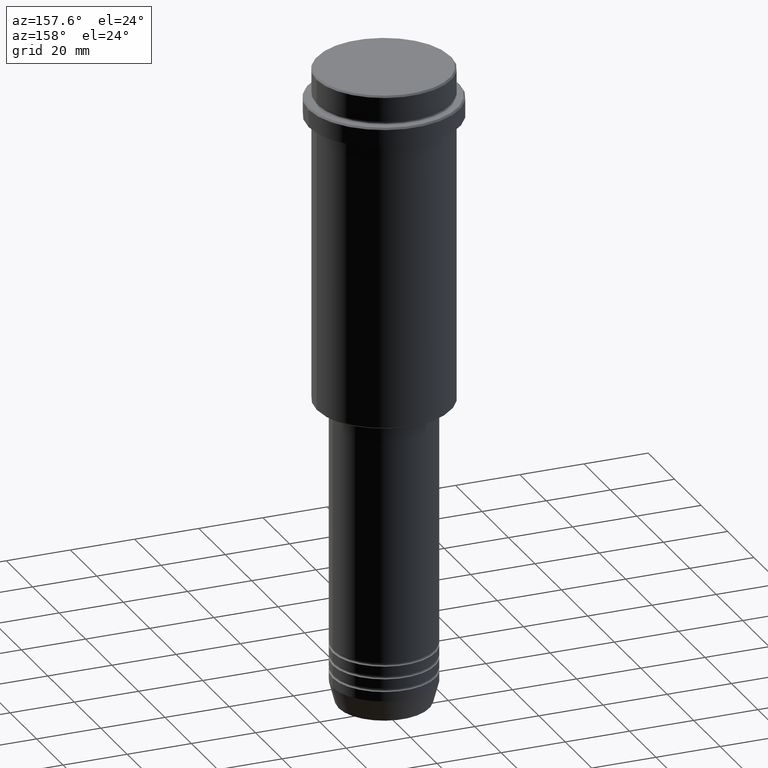
[diagram: clean part render]
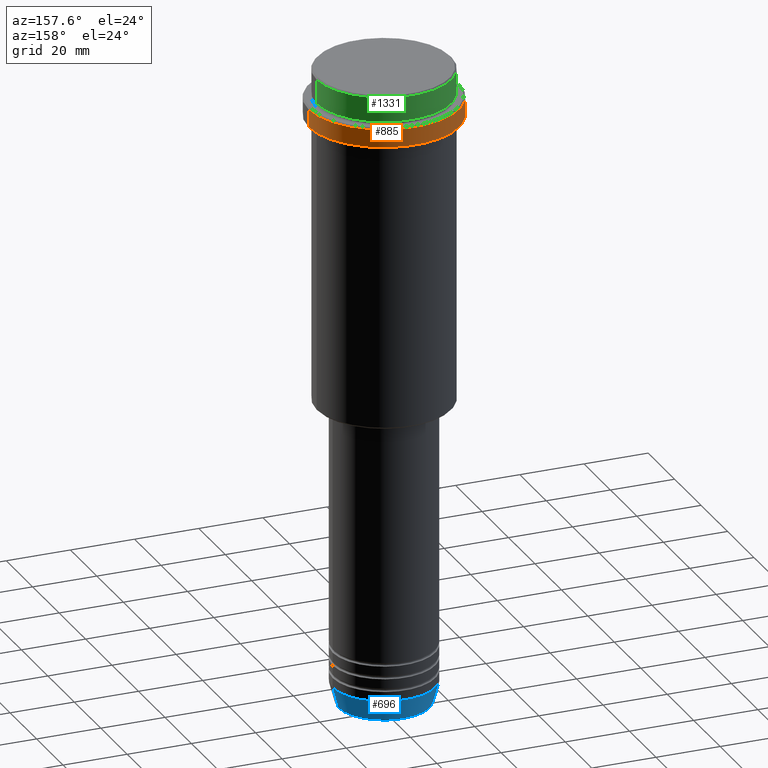
[diagram: same view with three faces highlighted in distinct colors, each labeled with its STEP entity id]
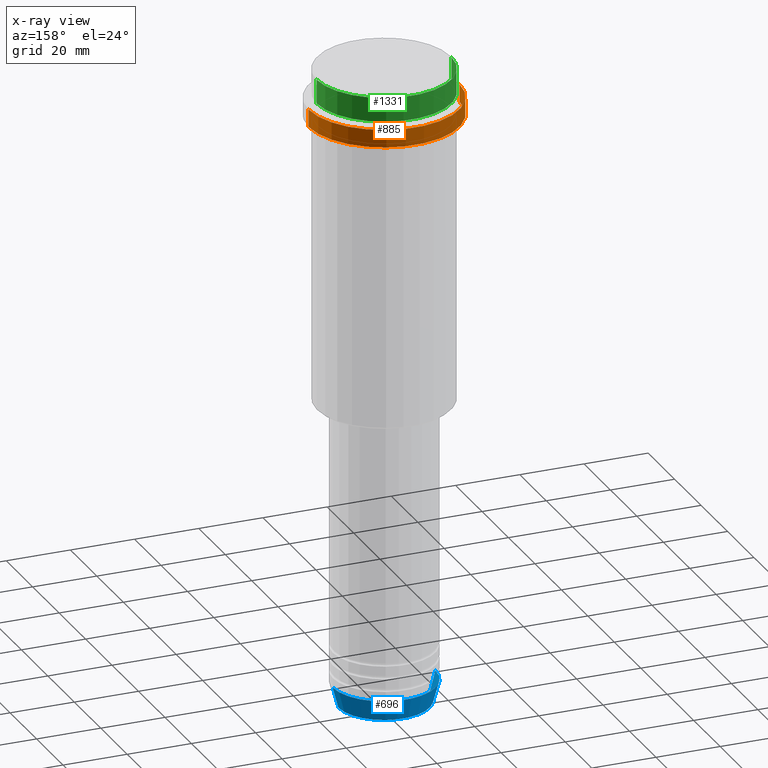
[diagram: x-ray of the same camera — body ghosted, the three highlighted faces saturated]
A machine part, auxiliary view with three faces highlighted in distinct colors.
The next image is the same camera in x-ray (body ghosted, the three faces saturated) — at least one of them is partly hidden behind the body in this view.
Their STEP definitions:

[orange] entity #885 — the highlighted cylindrical surface (partial cylindrical patch) has radius 23.5 mm, axis along (-0, -0, 1).
#34 = VERTEX_POINT ( 'NONE', #38 ) ;
#38 = CARTESIAN_POINT ( 'NONE',  ( -23.50000000000000000, 2.877919977996280320E-15, -9.500000000000000000 ) ) ;
#88 = AXIS2_PLACEMENT_3D ( 'NONE', #1214, #238, #898 ) ;
#126 = CARTESIAN_POINT ( 'NONE',  ( -23.50000000000000000, 2.877919977996280320E-15, 0.000000000000000000 ) ) ;
#146 = FACE_OUTER_BOUND ( 'NONE', #179, .T. ) ;
#152 = VECTOR ( 'NONE', #683, 1000.000000000000000 ) ;
#170 = ORIENTED_EDGE ( 'NONE', *, *, #722, .T. ) ;
#179 = EDGE_LOOP ( 'NONE', ( #443, #170, #812, #209 ) ) ;
#209 = ORIENTED_EDGE ( 'NONE', *, *, #232, .F. ) ;
#232 = EDGE_CURVE ( 'NONE', #942, #672, #1198, .T. ) ;
#238 = DIRECTION ( 'NONE',  ( 0.000000000000000000, 0.000000000000000000, -1.000000000000000000 ) ) ;
#282 = VERTEX_POINT ( 'NONE', #893 ) ;
#404 = AXIS2_PLACEMENT_3D ( 'NONE', #726, #1044, #715 ) ;
#443 = ORIENTED_EDGE ( 'NONE', *, *, #1361, .T. ) ;
#499 = DIRECTION ( 'NONE',  ( -0.000000000000000000, -0.000000000000000000, 1.000000000000000000 ) ) ;
#534 = DIRECTION ( 'NONE',  ( -0.000000000000000000, -0.000000000000000000, 1.000000000000000000 ) ) ;
#565 = LINE ( 'NONE', #126, #152 ) ;
#611 = CYLINDRICAL_SURFACE ( 'NONE', #404, 23.50000000000000000 ) ;
#667 = VECTOR ( 'NONE', #534, 1000.000000000000000 ) ;
#672 = VERTEX_POINT ( 'NONE', #1190 ) ;
#679 = CARTESIAN_POINT ( 'NONE',  ( 23.50000000000000000, 0.000000000000000000, 0.000000000000000000 ) ) ;
#683 = DIRECTION ( 'NONE',  ( -0.000000000000000000, -0.000000000000000000, 1.000000000000000000 ) ) ;
#702 = CARTESIAN_POINT ( 'NONE',  ( 0.000000000000000000, 0.000000000000000000, -15.00000000000000000 ) ) ;
#715 = DIRECTION ( 'NONE',  ( 1.000000000000000000, 0.000000000000000000, 0.000000000000000000 ) ) ;
#722 = EDGE_CURVE ( 'NONE', #282, #34, #565, .T. ) ;
#726 = CARTESIAN_POINT ( 'NONE',  ( 0.000000000000000000, 0.000000000000000000, 0.000000000000000000 ) ) ;
#733 = AXIS2_PLACEMENT_3D ( 'NONE', #702, #499, #1126 ) ;
#812 = ORIENTED_EDGE ( 'NONE', *, *, #835, .T. ) ;
#835 = EDGE_CURVE ( 'NONE', #34, #672, #1154, .T. ) ;
#885 = ADVANCED_FACE ( 'NONE', ( #146 ), #611, .T. ) ;
#893 = CARTESIAN_POINT ( 'NONE',  ( -23.50000000000000711, 2.877919977996281109E-15, -15.00000000000000000 ) ) ;
#898 = DIRECTION ( 'NONE',  ( 1.000000000000000000, 0.000000000000000000, 0.000000000000000000 ) ) ;
#916 = CARTESIAN_POINT ( 'NONE',  ( 23.50000000000000355, 0.000000000000000000, -15.00000000000000000 ) ) ;
#942 = VERTEX_POINT ( 'NONE', #916 ) ;
#1044 = DIRECTION ( 'NONE',  ( -0.000000000000000000, -0.000000000000000000, 1.000000000000000000 ) ) ;
#1126 = DIRECTION ( 'NONE',  ( 1.000000000000000000, 0.000000000000000000, 0.000000000000000000 ) ) ;
#1154 = CIRCLE ( 'NONE', #88, 23.50000000000000000 ) ;
#1179 = CIRCLE ( 'NONE', #733, 23.50000000000000355 ) ;
#1190 = CARTESIAN_POINT ( 'NONE',  ( 23.50000000000000000, 0.000000000000000000, -9.500000000000000000 ) ) ;
#1198 = LINE ( 'NONE', #679, #667 ) ;
#1214 = CARTESIAN_POINT ( 'NONE',  ( 0.000000000000000000, 0.000000000000000000, -9.500000000000000000 ) ) ;
#1361 = EDGE_CURVE ( 'NONE', #942, #282, #1179, .T. ) ;

[blue] entity #696 — the highlighted conical surface has half-angle 15 deg.
#13 = EDGE_CURVE ( 'NONE', #259, #480, #213, .T. ) ;
#53 = CARTESIAN_POINT ( 'NONE',  ( 0.000000000000000000, 0.000000000000000000, -199.6294095225512706 ) ) ;
#85 = DIRECTION ( 'NONE',  ( 1.000000000000000000, 0.000000000000000000, 0.000000000000000000 ) ) ;
#91 = VERTEX_POINT ( 'NONE', #176 ) ;
#129 = AXIS2_PLACEMENT_3D ( 'NONE', #1174, #186, #1077 ) ;
#176 = CARTESIAN_POINT ( 'NONE',  ( 16.00000000000000000, 0.000000000000000000, -193.0000000000000000 ) ) ;
#186 = DIRECTION ( 'NONE',  ( -0.000000000000000000, -0.000000000000000000, 1.000000000000000000 ) ) ;
#197 = VECTOR ( 'NONE', #1122, 1000.000000000000000 ) ;
#213 = CIRCLE ( 'NONE', #1380, 14.22365507213718239 ) ;
#259 = VERTEX_POINT ( 'NONE', #335 ) ;
#307 = CARTESIAN_POINT ( 'NONE',  ( 0.000000000000000000, 0.000000000000000000, -193.0000000000000000 ) ) ;
#335 = CARTESIAN_POINT ( 'NONE',  ( 14.22365507213718239, 0.000000000000000000, -199.6294095225512706 ) ) ;
#371 = DIRECTION ( 'NONE',  ( 1.000000000000000000, 0.000000000000000000, 0.000000000000000000 ) ) ;
#381 = LINE ( 'NONE', #1244, #197 ) ;
#474 = CARTESIAN_POINT ( 'NONE',  ( -16.00000000000000000, 1.959434878635765131E-15, -193.0000000000000000 ) ) ;
#480 = VERTEX_POINT ( 'NONE', #1332 ) ;
#501 = VERTEX_POINT ( 'NONE', #474 ) ;
#515 = DIRECTION ( 'NONE',  ( -0.000000000000000000, -0.000000000000000000, 1.000000000000000000 ) ) ;
#521 = CIRCLE ( 'NONE', #545, 16.00000000000000000 ) ;
#545 = AXIS2_PLACEMENT_3D ( 'NONE', #307, #515, #85 ) ;
#572 = EDGE_CURVE ( 'NONE', #91, #501, #521, .T. ) ;
#575 = ORIENTED_EDGE ( 'NONE', *, *, #863, .T. ) ;
#637 = LINE ( 'NONE', #1157, #1017 ) ;
#659 = ORIENTED_EDGE ( 'NONE', *, *, #572, .F. ) ;
#695 = DIRECTION ( 'NONE',  ( -0.000000000000000000, -0.000000000000000000, 1.000000000000000000 ) ) ;
#696 = ADVANCED_FACE ( 'NONE', ( #1168 ), #746, .T. ) ;
#746 = CONICAL_SURFACE ( 'NONE', #129, 16.00000000000000000, 0.2617993877991500740 ) ;
#859 = EDGE_LOOP ( 'NONE', ( #1285, #575, #659, #1201 ) ) ;
#863 = EDGE_CURVE ( 'NONE', #480, #501, #381, .T. ) ;
#1017 = VECTOR ( 'NONE', #1284, 1000.000000000000000 ) ;
#1077 = DIRECTION ( 'NONE',  ( 1.000000000000000000, 0.000000000000000000, 0.000000000000000000 ) ) ;
#1122 = DIRECTION ( 'NONE',  ( -0.2588190451025213501, 3.169619151431772337E-17, 0.9659258262890680902 ) ) ;
#1157 = CARTESIAN_POINT ( 'NONE',  ( 16.00000000000000000, 0.000000000000000000, -193.0000000000000000 ) ) ;
#1168 = FACE_OUTER_BOUND ( 'NONE', #859, .T. ) ;
#1174 = CARTESIAN_POINT ( 'NONE',  ( 0.000000000000000000, 0.000000000000000000, -193.0000000000000000 ) ) ;
#1201 = ORIENTED_EDGE ( 'NONE', *, *, #1403, .F. ) ;
#1244 = CARTESIAN_POINT ( 'NONE',  ( -16.00000000000000000, 1.959434878635765131E-15, -193.0000000000000000 ) ) ;
#1284 = DIRECTION ( 'NONE',  ( 0.2588190451025213501, 0.000000000000000000, 0.9659258262890680902 ) ) ;
#1285 = ORIENTED_EDGE ( 'NONE', *, *, #13, .T. ) ;
#1332 = CARTESIAN_POINT ( 'NONE',  ( -14.22365507213718239, 1.850665122131322942E-15, -199.6294095225512706 ) ) ;
#1380 = AXIS2_PLACEMENT_3D ( 'NONE', #53, #695, #371 ) ;
#1403 = EDGE_CURVE ( 'NONE', #259, #91, #637, .T. ) ;

[green] entity #1331 — the highlighted cylindrical surface (partial cylindrical patch) has radius 21 mm, axis along (-0, -0, 1).
#162 = EDGE_CURVE ( 'NONE', #508, #284, #505, .T. ) ;
#164 = DIRECTION ( 'NONE',  ( 0.000000000000000000, 0.000000000000000000, -1.000000000000000000 ) ) ;
#199 = CIRCLE ( 'NONE', #1155, 21.00000000000000000 ) ;
#217 = ORIENTED_EDGE ( 'NONE', *, *, #162, .T. ) ;
#235 = CARTESIAN_POINT ( 'NONE',  ( 21.00000000000000000, 0.000000000000000000, -0.5000000000000108802 ) ) ;
#266 = DIRECTION ( 'NONE',  ( -0.000000000000000000, -0.000000000000000000, 1.000000000000000000 ) ) ;
#272 = CARTESIAN_POINT ( 'NONE',  ( 0.000000000000000000, 0.000000000000000000, -0.5000000000000108802 ) ) ;
#284 = VERTEX_POINT ( 'NONE', #1209 ) ;
#319 = DIRECTION ( 'NONE',  ( -0.000000000000000000, -0.000000000000000000, 1.000000000000000000 ) ) ;
#328 = DIRECTION ( 'NONE',  ( -0.000000000000000000, -0.000000000000000000, 1.000000000000000000 ) ) ;
#416 = EDGE_LOOP ( 'NONE', ( #1180, #217, #1223, #432 ) ) ;
#425 = LINE ( 'NONE', #1397, #890 ) ;
#432 = ORIENTED_EDGE ( 'NONE', *, *, #658, .F. ) ;
#454 = VECTOR ( 'NONE', #628, 1000.000000000000000 ) ;
#487 = CARTESIAN_POINT ( 'NONE',  ( 21.00000000000000000, 0.000000000000000000, -7.999999999999998224 ) ) ;
#503 = AXIS2_PLACEMENT_3D ( 'NONE', #907, #266, #1340 ) ;
#505 = LINE ( 'NONE', #1058, #454 ) ;
#508 = VERTEX_POINT ( 'NONE', #1002 ) ;
#578 = EDGE_CURVE ( 'NONE', #980, #508, #707, .T. ) ;
#628 = DIRECTION ( 'NONE',  ( -0.000000000000000000, -0.000000000000000000, 1.000000000000000000 ) ) ;
#658 = EDGE_CURVE ( 'NONE', #980, #1189, #425, .T. ) ;
#707 = CIRCLE ( 'NONE', #1153, 21.00000000000000000 ) ;
#757 = CARTESIAN_POINT ( 'NONE',  ( 0.000000000000000000, 0.000000000000000000, -7.999999999999998224 ) ) ;
#805 = FACE_OUTER_BOUND ( 'NONE', #416, .T. ) ;
#831 = DIRECTION ( 'NONE',  ( 1.000000000000000000, 0.000000000000000000, 0.000000000000000000 ) ) ;
#890 = VECTOR ( 'NONE', #319, 1000.000000000000000 ) ;
#907 = CARTESIAN_POINT ( 'NONE',  ( 0.000000000000000000, 0.000000000000000000, 0.000000000000000000 ) ) ;
#962 = DIRECTION ( 'NONE',  ( 1.000000000000000000, 0.000000000000000000, 0.000000000000000000 ) ) ;
#980 = VERTEX_POINT ( 'NONE', #487 ) ;
#1002 = CARTESIAN_POINT ( 'NONE',  ( -21.00000000000000000, 2.571758278209441661E-15, -7.999999999999998224 ) ) ;
#1034 = CYLINDRICAL_SURFACE ( 'NONE', #503, 21.00000000000000000 ) ;
#1058 = CARTESIAN_POINT ( 'NONE',  ( -21.00000000000000000, 2.571758278209441661E-15, 0.000000000000000000 ) ) ;
#1153 = AXIS2_PLACEMENT_3D ( 'NONE', #757, #328, #962 ) ;
#1155 = AXIS2_PLACEMENT_3D ( 'NONE', #272, #164, #831 ) ;
#1180 = ORIENTED_EDGE ( 'NONE', *, *, #578, .T. ) ;
#1189 = VERTEX_POINT ( 'NONE', #235 ) ;
#1209 = CARTESIAN_POINT ( 'NONE',  ( -21.00000000000000000, 2.571758278209441661E-15, -0.5000000000000108802 ) ) ;
#1223 = ORIENTED_EDGE ( 'NONE', *, *, #1293, .T. ) ;
#1293 = EDGE_CURVE ( 'NONE', #284, #1189, #199, .T. ) ;
#1331 = ADVANCED_FACE ( 'NONE', ( #805 ), #1034, .T. ) ;
#1340 = DIRECTION ( 'NONE',  ( 1.000000000000000000, 0.000000000000000000, 0.000000000000000000 ) ) ;
#1397 = CARTESIAN_POINT ( 'NONE',  ( 21.00000000000000000, 0.000000000000000000, 0.000000000000000000 ) ) ;